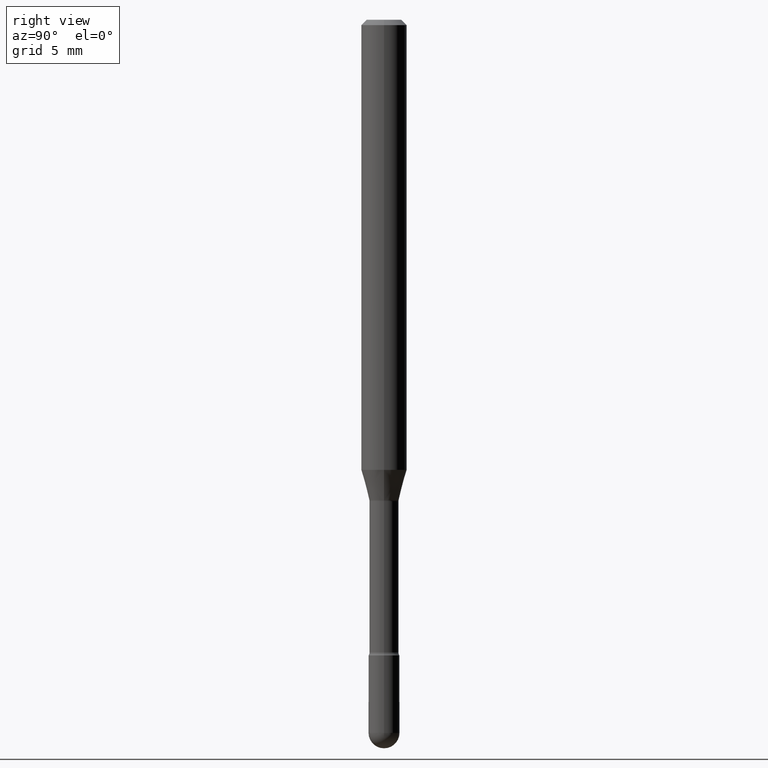
[diagram: clean part render]
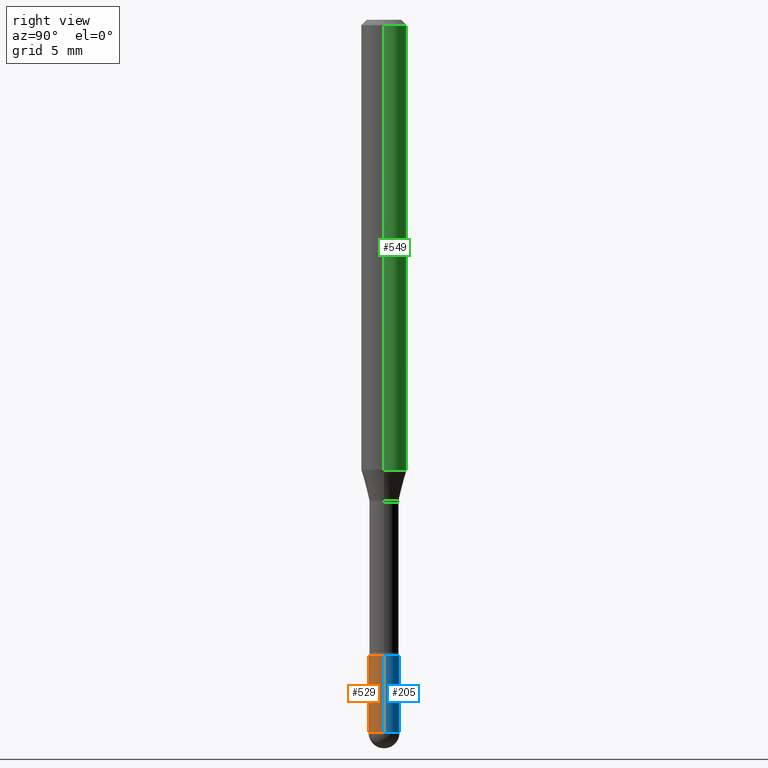
[diagram: same view with three faces highlighted in distinct colors, each labeled with its STEP entity id]
A machine part, right view with three faces highlighted in distinct colors.
Their STEP definitions:

[orange] entity #529 — the highlighted cylindrical surface (edge-blend (fillet) strip) has radius 1.0795 mm, axis along (-0, 0, 1).
#2 = AXIS2_PLACEMENT_3D ( 'NONE', #21, #414, #189 ) ;
#9 = DIRECTION ( 'NONE',  ( -2.445468806185136597E-29, 3.491481338843145583E-15, 1.000000000000000000 ) ) ;
#21 = CARTESIAN_POINT ( 'NONE',  ( 0.000000000000000000, 0.000000000000000000, 0.000000000000000000 ) ) ;
#35 = VECTOR ( 'NONE', #217, 39.37007874015748143 ) ;
#39 = CARTESIAN_POINT ( 'NONE',  ( 0.04250000000000000999, -2.967759138016664042E-16, 2.072375129713273202E-30 ) ) ;
#42 = AXIS2_PLACEMENT_3D ( 'NONE', #551, #283, #377 ) ;
#46 = AXIS2_PLACEMENT_3D ( 'NONE', #484, #9, #350 ) ;
#62 = CIRCLE ( 'NONE', #46, 0.04250000000000000999 ) ;
#67 = EDGE_CURVE ( 'NONE', #148, #450, #126, .T. ) ;
#76 = DIRECTION ( 'NONE',  ( -2.445468806185136877E-29, 3.491481338843145188E-15, 1.000000000000000000 ) ) ;
#99 = ORIENTED_EDGE ( 'NONE', *, *, #477, .T. ) ;
#105 = ORIENTED_EDGE ( 'NONE', *, *, #452, .F. ) ;
#126 = LINE ( 'NONE', #39, #397 ) ;
#134 = AXIS2_PLACEMENT_3D ( 'NONE', #412, #153, #324 ) ;
#146 = VERTEX_POINT ( 'NONE', #209 ) ;
#148 = VERTEX_POINT ( 'NONE', #289 ) ;
#153 = DIRECTION ( 'NONE',  ( -2.445468806185136597E-29, 3.491481338843145583E-15, 1.000000000000000000 ) ) ;
#161 = CIRCLE ( 'NONE', #134, 0.04250000000000000999 ) ;
#189 = DIRECTION ( 'NONE',  ( 1.000000000000000000, -6.982962677686266711E-15, 4.876176775795935793E-29 ) ) ;
#198 = VERTEX_POINT ( 'NONE', #247 ) ;
#209 = CARTESIAN_POINT ( 'NONE',  ( -3.019806626979944802E-16, -0.04250000000000681705, -1.957499999999999796 ) ) ;
#216 = EDGE_CURVE ( 'NONE', #146, #148, #62, .T. ) ;
#217 = DIRECTION ( 'NONE',  ( -2.445468806185136877E-29, 3.491481338843145188E-15, 1.000000000000000000 ) ) ;
#247 = CARTESIAN_POINT ( 'NONE',  ( -0.04250000000000000999, -6.161624165835330496E-15, -1.957500000000000018 ) ) ;
#264 = EDGE_CURVE ( 'NONE', #473, #450, #479, .T. ) ;
#272 = ORIENTED_EDGE ( 'NONE', *, *, #216, .T. ) ;
#283 = DIRECTION ( 'NONE',  ( -2.445468806185136597E-29, 3.491481338843145583E-15, 1.000000000000000000 ) ) ;
#289 = CARTESIAN_POINT ( 'NONE',  ( 0.04250000000000000999, -6.760380742335040388E-15, -1.957500000000000018 ) ) ;
#298 = LINE ( 'NONE', #478, #35 ) ;
#324 = DIRECTION ( 'NONE',  ( 1.000000000000000000, -6.982962677686273810E-15, 0.000000000000000000 ) ) ;
#350 = DIRECTION ( 'NONE',  ( 1.000000000000000000, -6.982962677686273810E-15, 0.000000000000000000 ) ) ;
#377 = DIRECTION ( 'NONE',  ( 1.000000000000000000, -6.982962677686276177E-15, 0.000000000000000000 ) ) ;
#397 = VECTOR ( 'NONE', #76, 39.37007874015748143 ) ;
#412 = CARTESIAN_POINT ( 'NONE',  ( 4.787005188107404686E-29, -6.834574720785457840E-15, -1.957500000000000018 ) ) ;
#414 = DIRECTION ( 'NONE',  ( -2.445468806185136597E-29, 3.491481338843145583E-15, 1.000000000000000000 ) ) ;
#418 = ORIENTED_EDGE ( 'NONE', *, *, #264, .F. ) ;
#450 = VERTEX_POINT ( 'NONE', #523 ) ;
#452 = EDGE_CURVE ( 'NONE', #198, #473, #298, .T. ) ;
#457 = EDGE_LOOP ( 'NONE', ( #105, #99, #272, #545, #418 ) ) ;
#462 = CYLINDRICAL_SURFACE ( 'NONE', #2, 0.04250000000000000999 ) ;
#473 = VERTEX_POINT ( 'NONE', #497 ) ;
#477 = EDGE_CURVE ( 'NONE', #198, #146, #161, .T. ) ;
#478 = CARTESIAN_POINT ( 'NONE',  ( -0.04250000000000000999, 3.019806626980426500E-16, -2.090547413358335560E-30 ) ) ;
#479 = CIRCLE ( 'NONE', #42, 0.04249999999999999611 ) ;
#484 = CARTESIAN_POINT ( 'NONE',  ( 4.787005188107404686E-29, -6.834574720785457840E-15, -1.957500000000000018 ) ) ;
#497 = CARTESIAN_POINT ( 'NONE',  ( -0.04249999999999999611, -6.161624165835330496E-15, -1.745000000000000107 ) ) ;
#513 = FACE_OUTER_BOUND ( 'NONE', #457, .T. ) ;
#523 = CARTESIAN_POINT ( 'NONE',  ( 0.04249999999999999611, -6.389410850082955497E-15, -1.745000000000000107 ) ) ;
#529 = ADVANCED_FACE ( 'NONE', ( #513 ), #462, .T. ) ;
#545 = ORIENTED_EDGE ( 'NONE', *, *, #67, .T. ) ;
#551 = CARTESIAN_POINT ( 'NONE',  ( 4.267343066793063832E-29, -6.092634936281288846E-15, -1.745000000000000107 ) ) ;

[blue] entity #205 — the highlighted cylindrical surface (edge-blend (fillet) strip) has radius 1.0795 mm, axis along (-0, 0, 1).
#3 = DIRECTION ( 'NONE',  ( -2.445468806185136597E-29, 3.491481338843145583E-15, 1.000000000000000000 ) ) ;
#32 = CYLINDRICAL_SURFACE ( 'NONE', #442, 0.04250000000000000999 ) ;
#35 = VECTOR ( 'NONE', #217, 39.37007874015748143 ) ;
#39 = CARTESIAN_POINT ( 'NONE',  ( 0.04250000000000000999, -2.967759138016664042E-16, 2.072375129713273202E-30 ) ) ;
#40 = DIRECTION ( 'NONE',  ( 1.000000000000000000, -6.982962677686273810E-15, 0.000000000000000000 ) ) ;
#49 = EDGE_CURVE ( 'NONE', #450, #473, #63, .T. ) ;
#51 = EDGE_CURVE ( 'NONE', #314, #198, #71, .T. ) ;
#59 = EDGE_LOOP ( 'NONE', ( #415, #119, #474, #502, #288 ) ) ;
#63 = CIRCLE ( 'NONE', #381, 0.04249999999999999611 ) ;
#67 = EDGE_CURVE ( 'NONE', #148, #450, #126, .T. ) ;
#71 = CIRCLE ( 'NONE', #102, 0.04250000000000000999 ) ;
#72 = CARTESIAN_POINT ( 'NONE',  ( 4.787005188107404686E-29, -6.834574720785457840E-15, -1.957500000000000018 ) ) ;
#76 = DIRECTION ( 'NONE',  ( -2.445468806185136877E-29, 3.491481338843145188E-15, 1.000000000000000000 ) ) ;
#102 = AXIS2_PLACEMENT_3D ( 'NONE', #72, #333, #286 ) ;
#116 = CARTESIAN_POINT ( 'NONE',  ( 4.267343066793063832E-29, -6.092634936281288846E-15, -1.745000000000000107 ) ) ;
#119 = ORIENTED_EDGE ( 'NONE', *, *, #452, .T. ) ;
#126 = LINE ( 'NONE', #39, #397 ) ;
#148 = VERTEX_POINT ( 'NONE', #289 ) ;
#168 = CARTESIAN_POINT ( 'NONE',  ( 2.967759138017140317E-16, 0.04249999999999314049, -1.957500000000000462 ) ) ;
#177 = DIRECTION ( 'NONE',  ( 1.000000000000000000, -6.982962677686266711E-15, 4.876176775795935793E-29 ) ) ;
#198 = VERTEX_POINT ( 'NONE', #247 ) ;
#205 = ADVANCED_FACE ( 'NONE', ( #424 ), #32, .T. ) ;
#217 = DIRECTION ( 'NONE',  ( -2.445468806185136877E-29, 3.491481338843145188E-15, 1.000000000000000000 ) ) ;
#247 = CARTESIAN_POINT ( 'NONE',  ( -0.04250000000000000999, -6.161624165835330496E-15, -1.957500000000000018 ) ) ;
#252 = CIRCLE ( 'NONE', #454, 0.04250000000000000999 ) ;
#286 = DIRECTION ( 'NONE',  ( 1.000000000000000000, -6.982962677686273810E-15, 0.000000000000000000 ) ) ;
#288 = ORIENTED_EDGE ( 'NONE', *, *, #512, .T. ) ;
#289 = CARTESIAN_POINT ( 'NONE',  ( 0.04250000000000000999, -6.760380742335040388E-15, -1.957500000000000018 ) ) ;
#298 = LINE ( 'NONE', #478, #35 ) ;
#314 = VERTEX_POINT ( 'NONE', #168 ) ;
#333 = DIRECTION ( 'NONE',  ( -2.445468806185136597E-29, 3.491481338843145583E-15, 1.000000000000000000 ) ) ;
#339 = CARTESIAN_POINT ( 'NONE',  ( 4.787005188107404686E-29, -6.834574720785457840E-15, -1.957500000000000018 ) ) ;
#381 = AXIS2_PLACEMENT_3D ( 'NONE', #116, #515, #419 ) ;
#397 = VECTOR ( 'NONE', #76, 39.37007874015748143 ) ;
#415 = ORIENTED_EDGE ( 'NONE', *, *, #51, .T. ) ;
#419 = DIRECTION ( 'NONE',  ( 1.000000000000000000, -6.982962677686276177E-15, 0.000000000000000000 ) ) ;
#424 = FACE_OUTER_BOUND ( 'NONE', #59, .T. ) ;
#435 = DIRECTION ( 'NONE',  ( -2.445468806185136597E-29, 3.491481338843145583E-15, 1.000000000000000000 ) ) ;
#442 = AXIS2_PLACEMENT_3D ( 'NONE', #526, #3, #177 ) ;
#450 = VERTEX_POINT ( 'NONE', #523 ) ;
#452 = EDGE_CURVE ( 'NONE', #198, #473, #298, .T. ) ;
#454 = AXIS2_PLACEMENT_3D ( 'NONE', #339, #435, #40 ) ;
#473 = VERTEX_POINT ( 'NONE', #497 ) ;
#474 = ORIENTED_EDGE ( 'NONE', *, *, #49, .F. ) ;
#478 = CARTESIAN_POINT ( 'NONE',  ( -0.04250000000000000999, 3.019806626980426500E-16, -2.090547413358335560E-30 ) ) ;
#497 = CARTESIAN_POINT ( 'NONE',  ( -0.04249999999999999611, -6.161624165835330496E-15, -1.745000000000000107 ) ) ;
#502 = ORIENTED_EDGE ( 'NONE', *, *, #67, .F. ) ;
#512 = EDGE_CURVE ( 'NONE', #148, #314, #252, .T. ) ;
#515 = DIRECTION ( 'NONE',  ( -2.445468806185136597E-29, 3.491481338843145583E-15, 1.000000000000000000 ) ) ;
#523 = CARTESIAN_POINT ( 'NONE',  ( 0.04249999999999999611, -6.389410850082955497E-15, -1.745000000000000107 ) ) ;
#526 = CARTESIAN_POINT ( 'NONE',  ( 0.000000000000000000, 0.000000000000000000, 0.000000000000000000 ) ) ;

[green] entity #549 — the highlighted cylindrical surface (edge-blend (fillet) strip) has radius 1.5875 mm, axis along (-0, 0, 1).
#19 = LINE ( 'NONE', #488, #113 ) ;
#113 = VECTOR ( 'NONE', #493, 39.37007874015748143 ) ;
#129 = CIRCLE ( 'NONE', #507, 0.06250000000000000000 ) ;
#141 = VECTOR ( 'NONE', #154, 39.37007874015748143 ) ;
#143 = VERTEX_POINT ( 'NONE', #306 ) ;
#154 = DIRECTION ( 'NONE',  ( -2.445468806185136877E-29, 3.491481338843145188E-15, 1.000000000000000000 ) ) ;
#157 = CARTESIAN_POINT ( 'NONE',  ( 3.668203209277725232E-31, -5.237222008264747365E-17, -0.01500000000000008271 ) ) ;
#159 = DIRECTION ( 'NONE',  ( 1.000000000000000000, -6.982962677686266711E-15, 4.852736867747366207E-29 ) ) ;
#164 = CARTESIAN_POINT ( 'NONE',  ( -1.169113584055446105E-44, 1.669184350826100908E-30, 4.780733988912460139E-16 ) ) ;
#225 = EDGE_LOOP ( 'NONE', ( #279, #295, #319, #495 ) ) ;
#258 = CIRCLE ( 'NONE', #299, 0.06250000000000000000 ) ;
#279 = ORIENTED_EDGE ( 'NONE', *, *, #458, .T. ) ;
#294 = CARTESIAN_POINT ( 'NONE',  ( 0.06250000000000000000, -4.888073874380391431E-16, -0.01500000000000008271 ) ) ;
#295 = ORIENTED_EDGE ( 'NONE', *, *, #465, .T. ) ;
#299 = AXIS2_PLACEMENT_3D ( 'NONE', #394, #346, #302 ) ;
#302 = DIRECTION ( 'NONE',  ( 1.000000000000000000, -6.982962677686270655E-15, 0.000000000000000000 ) ) ;
#306 = CARTESIAN_POINT ( 'NONE',  ( 0.06250000000000000000, -4.751355335960405821E-15, -1.235842254289322151 ) ) ;
#317 = DIRECTION ( 'NONE',  ( -2.445468806185136597E-29, 3.491481338843145583E-15, 1.000000000000000000 ) ) ;
#319 = ORIENTED_EDGE ( 'NONE', *, *, #562, .F. ) ;
#338 = VERTEX_POINT ( 'NONE', #501 ) ;
#346 = DIRECTION ( 'NONE',  ( -2.445468806185136597E-29, 3.491481338843145583E-15, 1.000000000000000000 ) ) ;
#365 = CYLINDRICAL_SURFACE ( 'NONE', #520, 0.06250000000000000000 ) ;
#367 = VERTEX_POINT ( 'NONE', #294 ) ;
#370 = DIRECTION ( 'NONE',  ( 1.000000000000000000, -6.982962677686266711E-15, 0.000000000000000000 ) ) ;
#394 = CARTESIAN_POINT ( 'NONE',  ( 3.022213682230056525E-29, -4.314920168605014152E-15, -1.235842254289322151 ) ) ;
#395 = CARTESIAN_POINT ( 'NONE',  ( -0.06250000000000000000, -3.870830958754951536E-15, -1.235842254289322151 ) ) ;
#409 = FACE_OUTER_BOUND ( 'NONE', #225, .T. ) ;
#417 = DIRECTION ( 'NONE',  ( -2.445468806185136597E-29, 3.491481338843145583E-15, 1.000000000000000000 ) ) ;
#458 = EDGE_CURVE ( 'NONE', #143, #464, #258, .T. ) ;
#464 = VERTEX_POINT ( 'NONE', #395 ) ;
#465 = EDGE_CURVE ( 'NONE', #464, #338, #19, .T. ) ;
#488 = CARTESIAN_POINT ( 'NONE',  ( -0.06250000000000000000, 4.440892098500642925E-16, 4.780733988912429571E-16 ) ) ;
#493 = DIRECTION ( 'NONE',  ( -2.445468806185136877E-29, 3.491481338843145188E-15, 1.000000000000000000 ) ) ;
#495 = ORIENTED_EDGE ( 'NONE', *, *, #528, .F. ) ;
#501 = CARTESIAN_POINT ( 'NONE',  ( -0.06250000000000000000, -1.739556984493767999E-15, -0.01500000000000008271 ) ) ;
#507 = AXIS2_PLACEMENT_3D ( 'NONE', #157, #317, #370 ) ;
#520 = AXIS2_PLACEMENT_3D ( 'NONE', #164, #417, #159 ) ;
#528 = EDGE_CURVE ( 'NONE', #143, #367, #555, .T. ) ;
#549 = ADVANCED_FACE ( 'NONE', ( #409 ), #365, .T. ) ;
#555 = LINE ( 'NONE', #559, #141 ) ;
#559 = CARTESIAN_POINT ( 'NONE',  ( 0.06250000000000000000, -4.364351673553899931E-16, 4.780733988912490708E-16 ) ) ;
#562 = EDGE_CURVE ( 'NONE', #367, #338, #129, .T. ) ;